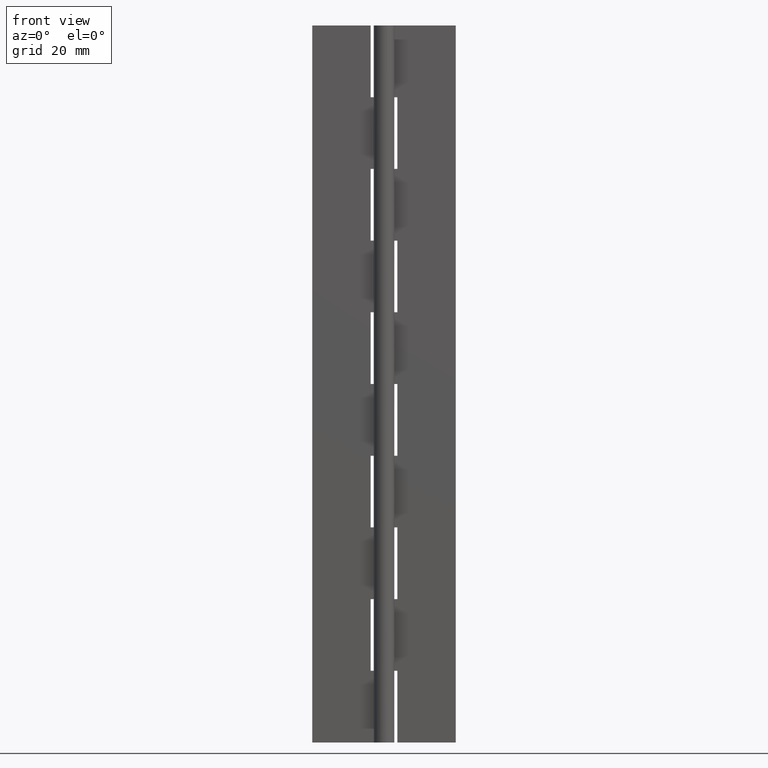
[diagram: clean part render]
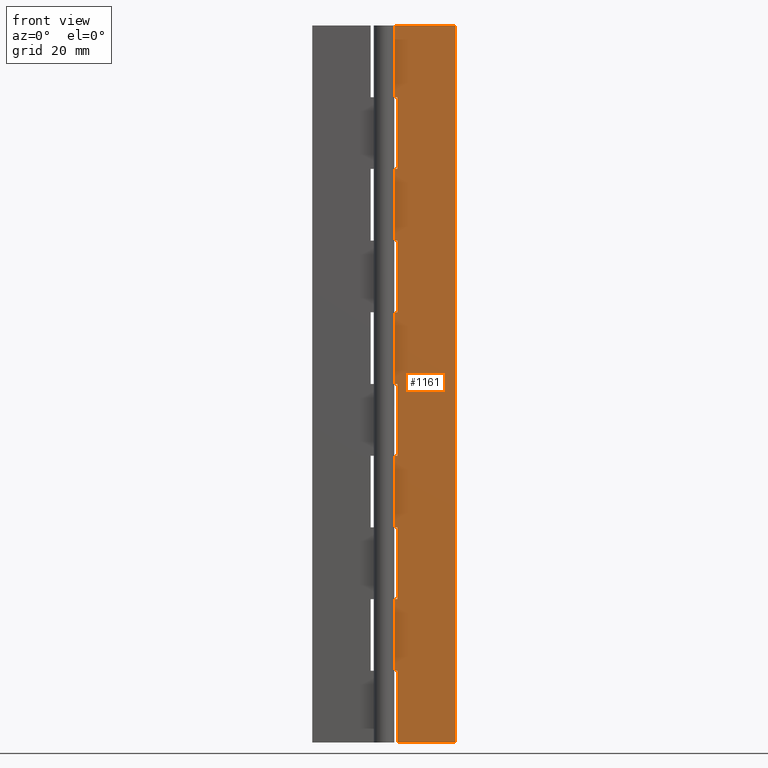
[diagram: same view with one face highlighted and labeled with its STEP entity id]
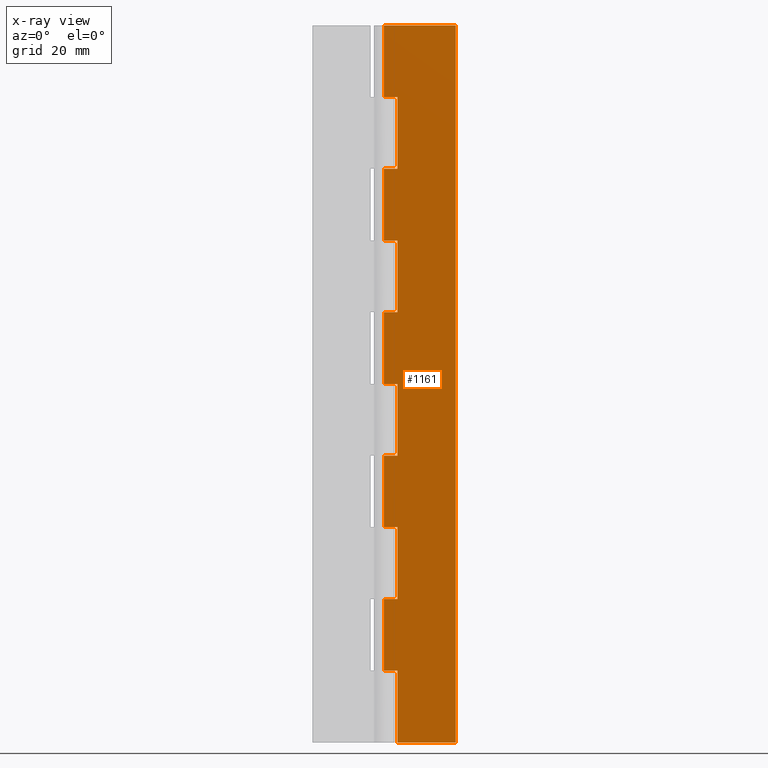
[diagram: x-ray of the same camera — body ghosted, the highlighted face saturated]
A machine part, front view. The second image highlights one B-rep face of the part: STEP entity #1161.
The next image is the same camera in x-ray: the body ghosted, the highlighted face saturated — about 0% of this face is hidden behind the body in this view.
In plain terms, the highlighted face is a freeform B-spline surface patch.
Its self-contained STEP definition (entity closure, byte-faithful):
#49=CARTESIAN_POINT('',(2.599998000000000,1.0,112.0));
#50=VERTEX_POINT('',#49);
#51=CARTESIAN_POINT('',(2.599998000000000,1.0,126.0));
#52=VERTEX_POINT('',#51);
#53=CARTESIAN_POINT('',(2.599998000000000,1.0,112.0));
#54=CARTESIAN_POINT('',(2.599998000000000,1.0,126.0));
#55=QUASI_UNIFORM_CURVE('',1,(#53,#54),.UNSPECIFIED.,.F.,.U.);
#56=EDGE_CURVE('',#50,#52,#55,.T.);
#85=CARTESIAN_POINT('',(6.123032E-017,1.0,112.0));
#86=VERTEX_POINT('',#85);
#87=CARTESIAN_POINT('',(6.123032E-017,1.0,112.0));
#88=CARTESIAN_POINT('',(2.599998000000000,1.0,112.0));
#89=QUASI_UNIFORM_CURVE('',1,(#87,#88),.UNSPECIFIED.,.F.,.U.);
#90=EDGE_CURVE('',#86,#50,#89,.T.);
#155=CARTESIAN_POINT('',(6.123032E-017,1.0,126.0));
#156=VERTEX_POINT('',#155);
#157=CARTESIAN_POINT('',(2.599998000000000,1.0,126.0));
#158=CARTESIAN_POINT('',(6.123032E-017,1.0,126.0));
#159=QUASI_UNIFORM_CURVE('',1,(#157,#158),.UNSPECIFIED.,.F.,.U.);
#160=EDGE_CURVE('',#52,#156,#159,.T.);
#225=CARTESIAN_POINT('',(2.599998000000000,1.0,84.0));
#226=VERTEX_POINT('',#225);
#227=CARTESIAN_POINT('',(2.599998000000000,1.0,98.0));
#228=VERTEX_POINT('',#227);
#229=CARTESIAN_POINT('',(2.599998000000000,1.0,84.0));
#230=CARTESIAN_POINT('',(2.599998000000000,1.0,98.0));
#231=QUASI_UNIFORM_CURVE('',1,(#229,#230),.UNSPECIFIED.,.F.,.U.);
#232=EDGE_CURVE('',#226,#228,#231,.T.);
#261=CARTESIAN_POINT('',(6.123032E-017,1.0,84.0));
#262=VERTEX_POINT('',#261);
#263=CARTESIAN_POINT('',(6.123032E-017,1.0,84.0));
#264=CARTESIAN_POINT('',(2.599998000000000,1.0,84.0));
#265=QUASI_UNIFORM_CURVE('',1,(#263,#264),.UNSPECIFIED.,.F.,.U.);
#266=EDGE_CURVE('',#262,#226,#265,.T.);
#331=CARTESIAN_POINT('',(6.123032E-017,1.0,98.0));
#332=VERTEX_POINT('',#331);
#333=CARTESIAN_POINT('',(2.599998000000000,1.0,98.0));
#334=CARTESIAN_POINT('',(6.123032E-017,1.0,98.0));
#335=QUASI_UNIFORM_CURVE('',1,(#333,#334),.UNSPECIFIED.,.F.,.U.);
#336=EDGE_CURVE('',#228,#332,#335,.T.);
#401=CARTESIAN_POINT('',(2.599998000000000,1.0,56.0));
#402=VERTEX_POINT('',#401);
#403=CARTESIAN_POINT('',(2.599998000000000,1.0,70.0));
#404=VERTEX_POINT('',#403);
#405=CARTESIAN_POINT('',(2.599998000000000,1.0,56.0));
#406=CARTESIAN_POINT('',(2.599998000000000,1.0,70.0));
#407=QUASI_UNIFORM_CURVE('',1,(#405,#406),.UNSPECIFIED.,.F.,.U.);
#408=EDGE_CURVE('',#402,#404,#407,.T.);
#437=CARTESIAN_POINT('',(6.123032E-017,1.0,56.0));
#438=VERTEX_POINT('',#437);
#439=CARTESIAN_POINT('',(6.123032E-017,1.0,56.0));
#440=CARTESIAN_POINT('',(2.599998000000000,1.0,56.0));
#441=QUASI_UNIFORM_CURVE('',1,(#439,#440),.UNSPECIFIED.,.F.,.U.);
#442=EDGE_CURVE('',#438,#402,#441,.T.);
#507=CARTESIAN_POINT('',(6.123032E-017,1.0,70.0));
#508=VERTEX_POINT('',#507);
#509=CARTESIAN_POINT('',(2.599998000000000,1.0,70.0));
#510=CARTESIAN_POINT('',(6.123032E-017,1.0,70.0));
#511=QUASI_UNIFORM_CURVE('',1,(#509,#510),.UNSPECIFIED.,.F.,.U.);
#512=EDGE_CURVE('',#404,#508,#511,.T.);
#577=CARTESIAN_POINT('',(2.599998000000000,1.0,28.0));
#578=VERTEX_POINT('',#577);
#579=CARTESIAN_POINT('',(2.599998000000000,1.0,42.0));
#580=VERTEX_POINT('',#579);
#581=CARTESIAN_POINT('',(2.599998000000000,1.0,28.0));
#582=CARTESIAN_POINT('',(2.599998000000000,1.0,42.0));
#583=QUASI_UNIFORM_CURVE('',1,(#581,#582),.UNSPECIFIED.,.F.,.U.);
#584=EDGE_CURVE('',#578,#580,#583,.T.);
#613=CARTESIAN_POINT('',(6.123032E-017,1.0,28.0));
#614=VERTEX_POINT('',#613);
#615=CARTESIAN_POINT('',(6.123032E-017,1.0,28.0));
#616=CARTESIAN_POINT('',(2.599998000000000,1.0,28.0));
#617=QUASI_UNIFORM_CURVE('',1,(#615,#616),.UNSPECIFIED.,.F.,.U.);
#618=EDGE_CURVE('',#614,#578,#617,.T.);
#683=CARTESIAN_POINT('',(6.123032E-017,1.0,42.0));
#684=VERTEX_POINT('',#683);
#685=CARTESIAN_POINT('',(2.599998000000000,1.0,42.0));
#686=CARTESIAN_POINT('',(6.123032E-017,1.0,42.0));
#687=QUASI_UNIFORM_CURVE('',1,(#685,#686),.UNSPECIFIED.,.F.,.U.);
#688=EDGE_CURVE('',#580,#684,#687,.T.);
#753=CARTESIAN_POINT('',(2.599998000000000,1.0,0.0));
#754=VERTEX_POINT('',#753);
#755=CARTESIAN_POINT('',(2.599998000000000,1.0,14.0));
#756=VERTEX_POINT('',#755);
#757=CARTESIAN_POINT('',(2.599998000000000,1.0,0.0));
#758=CARTESIAN_POINT('',(2.599998000000000,1.0,14.0));
#759=QUASI_UNIFORM_CURVE('',1,(#757,#758),.UNSPECIFIED.,.F.,.U.);
#760=EDGE_CURVE('',#754,#756,#759,.T.);
#789=CARTESIAN_POINT('',(6.123032E-017,1.0,14.0));
#790=VERTEX_POINT('',#789);
#791=CARTESIAN_POINT('',(2.599998000000000,1.0,14.0));
#792=CARTESIAN_POINT('',(6.123032E-017,1.0,14.0));
#793=QUASI_UNIFORM_CURVE('',1,(#791,#792),.UNSPECIFIED.,.F.,.U.);
#794=EDGE_CURVE('',#756,#790,#793,.T.);
#859=CARTESIAN_POINT('',(14.0,1.0,0.0));
#860=VERTEX_POINT('',#859);
#861=CARTESIAN_POINT('',(14.0,1.0,0.0));
#862=CARTESIAN_POINT('',(2.599998000000000,1.0,0.0));
#863=QUASI_UNIFORM_CURVE('',1,(#861,#862),.UNSPECIFIED.,.F.,.U.);
#864=EDGE_CURVE('',#860,#754,#863,.T.);
#887=CARTESIAN_POINT('',(14.0,1.0,140.0));
#888=VERTEX_POINT('',#887);
#889=CARTESIAN_POINT('',(6.123032E-017,1.0,140.0));
#890=VERTEX_POINT('',#889);
#891=CARTESIAN_POINT('',(14.0,1.0,140.0));
#892=CARTESIAN_POINT('',(6.123032E-017,1.0,140.0));
#893=QUASI_UNIFORM_CURVE('',1,(#891,#892),.UNSPECIFIED.,.F.,.U.);
#894=EDGE_CURVE('',#888,#890,#893,.T.);
#972=CARTESIAN_POINT('',(14.0,1.0,140.0));
#973=CARTESIAN_POINT('',(14.0,1.0,0.0));
#974=QUASI_UNIFORM_CURVE('',1,(#972,#973),.UNSPECIFIED.,.F.,.U.);
#975=EDGE_CURVE('',#888,#860,#974,.T.);
#1108=CARTESIAN_POINT('',(6.123032E-017,1.0,28.0));
#1109=CARTESIAN_POINT('',(6.123032E-017,1.0,14.0));
#1110=QUASI_UNIFORM_CURVE('',1,(#1108,#1109),.UNSPECIFIED.,.F.,.U.);
#1111=EDGE_CURVE('',#614,#790,#1110,.T.);
#1116=CARTESIAN_POINT('',(-0.699299972865284,1.0,146.992999728652790));
#1117=CARTESIAN_POINT('',(-0.699299972865284,1.0,-6.993003483745455));
#1118=CARTESIAN_POINT('',(14.699300348374550,1.0,146.992999728652790));
#1119=CARTESIAN_POINT('',(14.699300348374550,1.0,-6.993003483745455));
#1120=B_SPLINE_SURFACE_WITH_KNOTS('',1,1,((#1116,#1118),(#1117,#1119)),.UNSPECIFIED.,.F.,.F.,.U.,(2,2),(2,2),(0.0,153.986003212398290),(0.0,15.398600321239829),.UNSPECIFIED.);
#1121=ORIENTED_EDGE('',*,*,#160,.F.);
#1122=ORIENTED_EDGE('',*,*,#56,.F.);
#1123=ORIENTED_EDGE('',*,*,#90,.F.);
#1124=CARTESIAN_POINT('',(6.123032E-017,1.0,112.0));
#1125=CARTESIAN_POINT('',(6.123032E-017,1.0,98.0));
#1126=QUASI_UNIFORM_CURVE('',1,(#1124,#1125),.UNSPECIFIED.,.F.,.U.);
#1127=EDGE_CURVE('',#86,#332,#1126,.T.);
#1128=ORIENTED_EDGE('',*,*,#1127,.T.);
#1129=ORIENTED_EDGE('',*,*,#336,.F.);
#1130=ORIENTED_EDGE('',*,*,#232,.F.);
#1131=ORIENTED_EDGE('',*,*,#266,.F.);
#1132=CARTESIAN_POINT('',(6.123032E-017,1.0,84.0));
#1133=CARTESIAN_POINT('',(6.123032E-017,1.0,70.0));
#1134=QUASI_UNIFORM_CURVE('',1,(#1132,#1133),.UNSPECIFIED.,.F.,.U.);
#1135=EDGE_CURVE('',#262,#508,#1134,.T.);
#1136=ORIENTED_EDGE('',*,*,#1135,.T.);
#1137=ORIENTED_EDGE('',*,*,#512,.F.);
#1138=ORIENTED_EDGE('',*,*,#408,.F.);
#1139=ORIENTED_EDGE('',*,*,#442,.F.);
#1140=CARTESIAN_POINT('',(6.123032E-017,1.0,56.0));
#1141=CARTESIAN_POINT('',(6.123032E-017,1.0,42.0));
#1142=QUASI_UNIFORM_CURVE('',1,(#1140,#1141),.UNSPECIFIED.,.F.,.U.);
#1143=EDGE_CURVE('',#438,#684,#1142,.T.);
#1144=ORIENTED_EDGE('',*,*,#1143,.T.);
#1145=ORIENTED_EDGE('',*,*,#688,.F.);
#1146=ORIENTED_EDGE('',*,*,#584,.F.);
#1147=ORIENTED_EDGE('',*,*,#618,.F.);
#1148=ORIENTED_EDGE('',*,*,#1111,.T.);
#1149=ORIENTED_EDGE('',*,*,#794,.F.);
#1150=ORIENTED_EDGE('',*,*,#760,.F.);
#1151=ORIENTED_EDGE('',*,*,#864,.F.);
#1152=ORIENTED_EDGE('',*,*,#975,.F.);
#1153=ORIENTED_EDGE('',*,*,#894,.T.);
#1154=CARTESIAN_POINT('',(6.123032E-017,1.0,140.0));
#1155=CARTESIAN_POINT('',(6.123032E-017,1.0,126.0));
#1156=QUASI_UNIFORM_CURVE('',1,(#1154,#1155),.UNSPECIFIED.,.F.,.U.);
#1157=EDGE_CURVE('',#890,#156,#1156,.T.);
#1158=ORIENTED_EDGE('',*,*,#1157,.T.);
#1159=EDGE_LOOP('',(#1121,#1122,#1123,#1128,#1129,#1130,#1131,#1136,#1137,#1138,#1139,#1144,#1145,#1146,#1147,#1148,#1149,#1150,#1151,#1152,#1153,#1158));
#1160=FACE_OUTER_BOUND('',#1159,.T.);
#1161=ADVANCED_FACE('',(#1160),#1120,.T.);